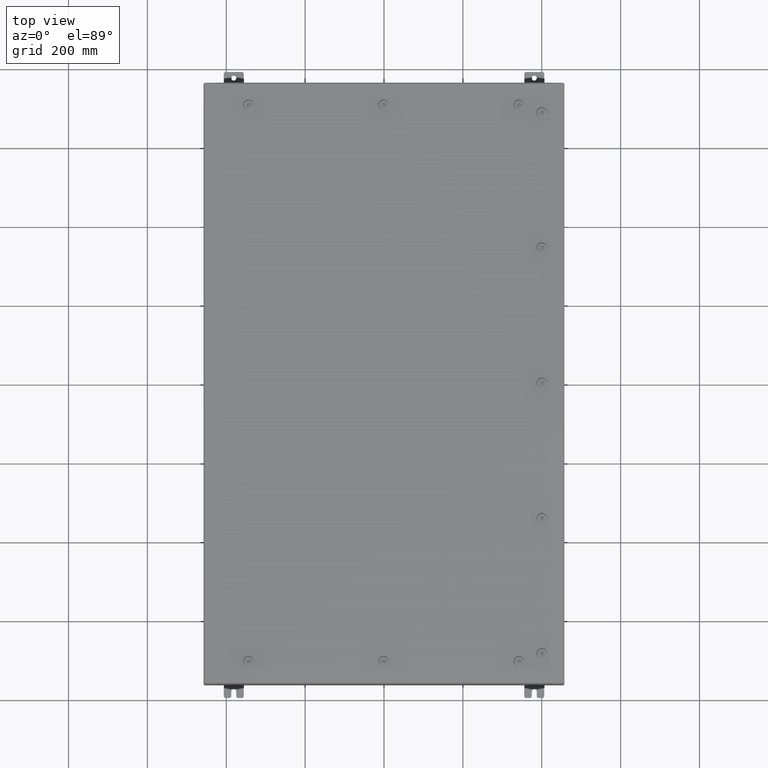
[diagram: clean part render]
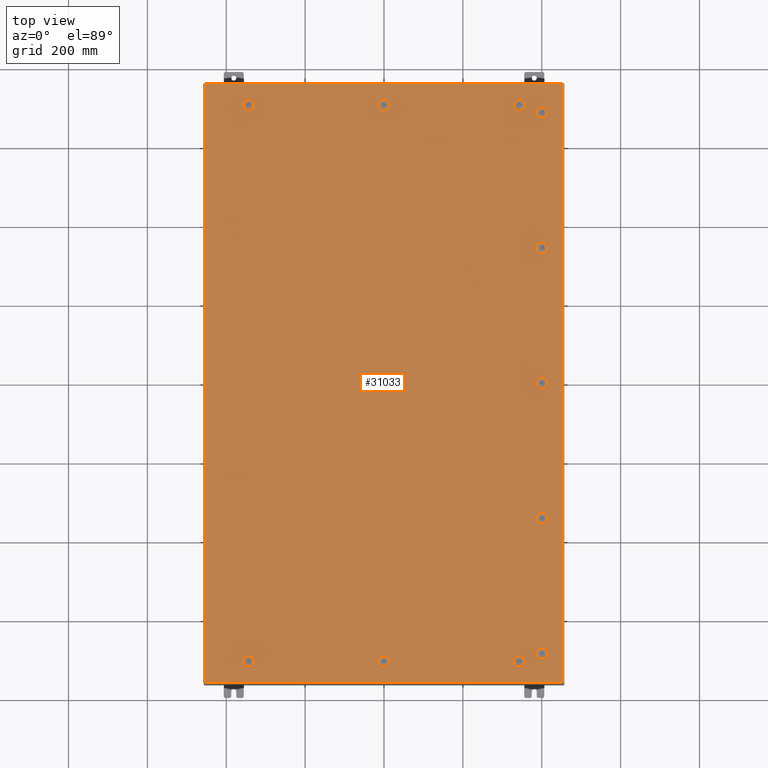
[diagram: same view with one face highlighted and labeled with its STEP entity id]
A machine part, top view. The second image highlights one B-rep face of the part: STEP entity #31033.
In plain terms, the highlighted planar face has unit normal (0, 0, -1).
Its self-contained STEP definition (entity closure, byte-faithful):
#134 = CIRCLE ( 'NONE', #59045, 0.4424999999999983400 ) ;
#562 = EDGE_LOOP ( 'NONE', ( #17964, #68830, #25223, #2264, #16857 ) ) ;
#693 = CARTESIAN_POINT ( 'NONE',  ( 0.1994523752678995500, 27.39280000000000500, 0.0000000000000000000 ) ) ;
#711 = VECTOR ( 'NONE', #7477, 39.37007874015748100 ) ;
#865 = VERTEX_POINT ( 'NONE', #67998 ) ;
#885 = AXIS2_PLACEMENT_3D ( 'NONE', #6546, #43883, #11890 ) ;
#894 = DIRECTION ( 'NONE',  ( 0.0000000000000000000, 1.000000000000000000, 6.982962677686270700E-015 ) ) ;
#1018 = DIRECTION ( 'NONE',  ( -1.000000000000000000, 0.0000000000000000000, -0.0000000000000000000 ) ) ;
#1143 = ORIENTED_EDGE ( 'NONE', *, *, #59953, .F. ) ;
#1193 = CIRCLE ( 'NONE', #4665, 0.4424999999999983400 ) ;
#1323 = VERTEX_POINT ( 'NONE', #39084 ) ;
#1429 = CARTESIAN_POINT ( 'NONE',  ( -13.69945237526786700, -28.18280000000001100, 0.0000000000000000000 ) ) ;
#1664 = CARTESIAN_POINT ( 'NONE',  ( 15.78780000000000600, 1.529834876451990400E-014, 0.0000000000000000000 ) ) ;
#1734 = AXIS2_PLACEMENT_3D ( 'NONE', #10011, #47366, #15346 ) ;
#1767 = VERTEX_POINT ( 'NONE', #56731 ) ;
#1785 = DIRECTION ( 'NONE',  ( 1.000000000000000000, 0.0000000000000000000, 0.0000000000000000000 ) ) ;
#1797 = EDGE_LOOP ( 'NONE', ( #12185, #9055, #69165, #61637, #56162 ) ) ;
#1937 = CARTESIAN_POINT ( 'NONE',  ( 13.49999999999998600, -27.78780000000000800, -1.578617423656501800E-013 ) ) ;
#1939 = CARTESIAN_POINT ( 'NONE',  ( 13.30054762473210400, 27.39280000000000500, -9.287722765629301200E-014 ) ) ;
#1982 = DIRECTION ( 'NONE',  ( -1.000000000000000000, 1.095739467627836100E-014, 0.0000000000000000000 ) ) ;
#2155 = VERTEX_POINT ( 'NONE', #66575 ) ;
#2157 = EDGE_LOOP ( 'NONE', ( #12178, #30775, #1143, #33017, #7989 ) ) ;
#2188 = EDGE_LOOP ( 'NONE', ( #5743, #47363, #36731, #57926 ) ) ;
#2203 = VECTOR ( 'NONE', #8500, 39.37007874015748100 ) ;
#2209 = LINE ( 'NONE', #34945, #16352 ) ;
#2264 = ORIENTED_EDGE ( 'NONE', *, *, #57761, .F. ) ;
#2476 = ORIENTED_EDGE ( 'NONE', *, *, #57157, .F. ) ;
#2613 = EDGE_CURVE ( 'NONE', #67938, #31679, #12963, .T. ) ;
#2895 = AXIS2_PLACEMENT_3D ( 'NONE', #9745, #47095, #15081 ) ;
#3361 = VECTOR ( 'NONE', #48272, 39.37007874015748100 ) ;
#3399 = DIRECTION ( 'NONE',  ( -1.000000000000000000, 0.0000000000000000000, 7.785697190086082800E-029 ) ) ;
#3426 = CARTESIAN_POINT ( 'NONE',  ( 15.39280000000001400, 13.30054762473213400, 0.0000000000000000000 ) ) ;
#3694 = ORIENTED_EDGE ( 'NONE', *, *, #65088, .F. ) ;
#4224 = FACE_BOUND ( 'NONE', #64106, .T. ) ;
#4617 = DIRECTION ( 'NONE',  ( 0.0000000000000000000, 1.000000000000000000, 6.982962677686270700E-015 ) ) ;
#4665 = AXIS2_PLACEMENT_3D ( 'NONE', #42764, #10753, #48095 ) ;
#4886 = VERTEX_POINT ( 'NONE', #11241 ) ;
#5079 = DIRECTION ( 'NONE',  ( 6.982962677686266700E-015, -0.0000000000000000000, 1.000000000000000000 ) ) ;
#5356 = CARTESIAN_POINT ( 'NONE',  ( 16.18280000000000700, 13.30054762473213300, 0.0000000000000000000 ) ) ;
#5375 = DIRECTION ( 'NONE',  ( 0.0000000000000000000, 0.0000000000000000000, 1.000000000000000000 ) ) ;
#5507 = ORIENTED_EDGE ( 'NONE', *, *, #45176, .F. ) ;
#5743 = ORIENTED_EDGE ( 'NONE', *, *, #30547, .F. ) ;
#6106 = DIRECTION ( 'NONE',  ( 1.000000000000000000, -0.0000000000000000000, -0.0000000000000000000 ) ) ;
#6279 = EDGE_LOOP ( 'NONE', ( #39095, #14750, #68523, #36606 ) ) ;
#6379 = VERTEX_POINT ( 'NONE', #56754 ) ;
#6436 = AXIS2_PLACEMENT_3D ( 'NONE', #44473, #12476, #49834 ) ;
#6546 = CARTESIAN_POINT ( 'NONE',  ( 13.49999999999998600, 27.78780000000000100, -9.426999614876453700E-014 ) ) ;
#6608 = EDGE_LOOP ( 'NONE', ( #56340, #59486, #31998, #40694, #40219 ) ) ;
#6903 = DIRECTION ( 'NONE',  ( -1.095739467627838000E-014, -1.000000000000000000, 0.0000000000000000000 ) ) ;
#7022 = EDGE_CURVE ( 'NONE', #56149, #17341, #68126, .T. ) ;
#7069 = DIRECTION ( 'NONE',  ( 1.000000000000000000, 0.0000000000000000000, 0.0000000000000000000 ) ) ;
#7224 = VERTEX_POINT ( 'NONE', #8362 ) ;
#7346 = DIRECTION ( 'NONE',  ( 1.000000000000000000, 0.0000000000000000000, 6.982962677686270700E-015 ) ) ;
#7477 = DIRECTION ( 'NONE',  ( 5.478697338139280000E-015, 1.000000000000000000, 6.982962677686382700E-015 ) ) ;
#7540 = AXIS2_PLACEMENT_3D ( 'NONE', #9359, #46700, #14681 ) ;
#7790 = CARTESIAN_POINT ( 'NONE',  ( 16.18280000000000700, 27.19945237526789600, 0.0000000000000000000 ) ) ;
#7989 = ORIENTED_EDGE ( 'NONE', *, *, #56643, .F. ) ;
#8009 = EDGE_LOOP ( 'NONE', ( #30422, #68835, #34148, #35630 ) ) ;
#8143 = AXIS2_PLACEMENT_3D ( 'NONE', #64943, #32909, #894 ) ;
#8362 = CARTESIAN_POINT ( 'NONE',  ( -17.84979999999999800, -29.84979999999999500, 1.946441695485787500E-015 ) ) ;
#8500 = DIRECTION ( 'NONE',  ( -5.478697338139220100E-015, 1.000000000000000000, -0.0000000000000000000 ) ) ;
#8672 = VERTEX_POINT ( 'NONE', #5356 ) ;
#8783 = VECTOR ( 'NONE', #68954, 39.37007874015748100 ) ;
#8891 = EDGE_CURVE ( 'NONE', #1323, #26157, #13747, .T. ) ;
#8915 = DIRECTION ( 'NONE',  ( 0.0000000000000000000, 0.0000000000000000000, 1.000000000000000000 ) ) ;
#9055 = ORIENTED_EDGE ( 'NONE', *, *, #35049, .F. ) ;
#9061 = CARTESIAN_POINT ( 'NONE',  ( 13.30054762473209500, -28.18280000000000400, -1.620127811158077400E-013 ) ) ;
#9074 = CARTESIAN_POINT ( 'NONE',  ( -13.30054762473210200, 27.39280000000000500, 0.0000000000000000000 ) ) ;
#9248 = VECTOR ( 'NONE', #27090, 39.37007874015748100 ) ;
#9319 = CIRCLE ( 'NONE', #17200, 0.4424999999999972800 ) ;
#9359 = CARTESIAN_POINT ( 'NONE',  ( 1.529834876451987200E-014, 27.78780000000000100, 0.0000000000000000000 ) ) ;
#9630 = EDGE_CURVE ( 'NONE', #15459, #41824, #57974, .T. ) ;
#9745 = CARTESIAN_POINT ( 'NONE',  ( 13.49999999999998600, -27.78780000000000800, -1.578617423656501800E-013 ) ) ;
#9779 = EDGE_CURVE ( 'NONE', #20338, #39623, #11977, .T. ) ;
#9949 = AXIS2_PLACEMENT_3D ( 'NONE', #51728, #19676, #57094 ) ;
#10011 = CARTESIAN_POINT ( 'NONE',  ( 15.78780000000001300, -13.50000000000001800, -9.426999614876466400E-014 ) ) ;
#10057 = LINE ( 'NONE', #47423, #19237 ) ;
#10464 = CARTESIAN_POINT ( 'NONE',  ( -13.69945237526786900, 27.39280000000000500, 0.0000000000000000000 ) ) ;
#10476 = CARTESIAN_POINT ( 'NONE',  ( -13.49999999999998600, -27.78780000000001500, -2.521317385144146900E-013 ) ) ;
#10550 = DIRECTION ( 'NONE',  ( 0.0000000000000000000, 1.000000000000000000, 6.982962677686270700E-015 ) ) ;
#10753 = DIRECTION ( 'NONE',  ( -0.0000000000000000000, -6.982962677686266700E-015, 1.000000000000000000 ) ) ;
#10788 = VERTEX_POINT ( 'NONE', #9061 ) ;
#10934 = CARTESIAN_POINT ( 'NONE',  ( -13.30054762473209400, -28.18280000000000700, -2.548900087721007400E-013 ) ) ;
#11096 = CARTESIAN_POINT ( 'NONE',  ( -13.05749999999998900, 27.78780000000000100, 0.0000000000000000000 ) ) ;
#11241 = CARTESIAN_POINT ( 'NONE',  ( -0.1994523752678689600, -27.39280000000000500, -2.493734682567286400E-013 ) ) ;
#11492 = ORIENTED_EDGE ( 'NONE', *, *, #9630, .F. ) ;
#11683 = CARTESIAN_POINT ( 'NONE',  ( 1.529834876451987200E-014, 27.78780000000000100, 0.0000000000000000000 ) ) ;
#11697 = FACE_BOUND ( 'NONE', #6608, .T. ) ;
#11761 = LINE ( 'NONE', #33119, #25961 ) ;
#11788 = VERTEX_POINT ( 'NONE', #23167 ) ;
#11812 = VECTOR ( 'NONE', #19951, 39.37007874015748100 ) ;
#11818 = EDGE_CURVE ( 'NONE', #24418, #62717, #60333, .T. ) ;
#11890 = DIRECTION ( 'NONE',  ( -1.000000000000000000, 0.0000000000000000000, 6.982962677686235200E-015 ) ) ;
#11977 = LINE ( 'NONE', #56094, #24529 ) ;
#12178 = ORIENTED_EDGE ( 'NONE', *, *, #45532, .F. ) ;
#12185 = ORIENTED_EDGE ( 'NONE', *, *, #42447, .F. ) ;
#12221 = ORIENTED_EDGE ( 'NONE', *, *, #50963, .F. ) ;
#12259 = DIRECTION ( 'NONE',  ( 0.0000000000000000000, 0.0000000000000000000, 1.000000000000000000 ) ) ;
#12343 = CARTESIAN_POINT ( 'NONE',  ( 17.84979999999999800, 29.84980000000001300, 1.946441695485787500E-015 ) ) ;
#12476 = DIRECTION ( 'NONE',  ( -6.982962677686266700E-015, -6.982962677686266700E-015, 1.000000000000000000 ) ) ;
#12723 = AXIS2_PLACEMENT_3D ( 'NONE', #44266, #12259, #49617 ) ;
#12946 = CARTESIAN_POINT ( 'NONE',  ( 13.69945237526786900, 28.18280000000000000, 0.0000000000000000000 ) ) ;
#12963 = CIRCLE ( 'NONE', #57110, 0.4424999999999983400 ) ;
#13062 = CARTESIAN_POINT ( 'NONE',  ( -13.05749999999998900, -27.78780000000001500, -2.521317385144146900E-013 ) ) ;
#13090 = VERTEX_POINT ( 'NONE', #37916 ) ;
#13178 = CARTESIAN_POINT ( 'NONE',  ( 0.1994523752678995500, 27.39280000000000500, 0.0000000000000000000 ) ) ;
#13312 = ORIENTED_EDGE ( 'NONE', *, *, #34636, .F. ) ;
#13323 = LINE ( 'NONE', #64980, #68517 ) ;
#13328 = VERTEX_POINT ( 'NONE', #1939 ) ;
#13340 = AXIS2_PLACEMENT_3D ( 'NONE', #64835, #33037, #1018 ) ;
#13390 = FACE_BOUND ( 'NONE', #6279, .T. ) ;
#13747 = LINE ( 'NONE', #60150, #54664 ) ;
#13752 = DIRECTION ( 'NONE',  ( -1.000000000000000000, -0.0000000000000000000, -6.982962677686265900E-015 ) ) ;
#13771 = EDGE_CURVE ( 'NONE', #44496, #7224, #10057, .T. ) ;
#13930 = VERTEX_POINT ( 'NONE', #43668 ) ;
#14180 = ORIENTED_EDGE ( 'NONE', *, *, #11818, .F. ) ;
#14533 = CARTESIAN_POINT ( 'NONE',  ( 15.39280000000001400, 0.1994523752679062100, 0.0000000000000000000 ) ) ;
#14568 = CIRCLE ( 'NONE', #64040, 0.4424999999999961700 ) ;
#14596 = CARTESIAN_POINT ( 'NONE',  ( 15.39280000000002200, -27.19945237526790300, -1.899327607900008200E-013 ) ) ;
#14681 = DIRECTION ( 'NONE',  ( 1.000000000000000000, 0.0000000000000000000, 0.0000000000000000000 ) ) ;
#14750 = ORIENTED_EDGE ( 'NONE', *, *, #69319, .F. ) ;
#14975 = EDGE_CURVE ( 'NONE', #58235, #44496, #51773, .T. ) ;
#15081 = DIRECTION ( 'NONE',  ( 1.000000000000000000, 0.0000000000000000000, 6.982962677686304600E-015 ) ) ;
#15206 = EDGE_CURVE ( 'NONE', #17638, #32109, #55926, .T. ) ;
#15346 = DIRECTION ( 'NONE',  ( 0.0000000000000000000, 1.000000000000000000, 6.982962677686269100E-015 ) ) ;
#15392 = LINE ( 'NONE', #59102, #54676 ) ;
#15459 = VERTEX_POINT ( 'NONE', #67732 ) ;
#15658 = CARTESIAN_POINT ( 'NONE',  ( 15.39280000000001900, 27.19945237526790300, 0.0000000000000000000 ) ) ;
#15818 = LINE ( 'NONE', #10934, #3361 ) ;
#15830 = DIRECTION ( 'NONE',  ( 0.0000000000000000000, 1.000000000000000000, 6.982962677686270700E-015 ) ) ;
#15894 = AXIS2_PLACEMENT_3D ( 'NONE', #49107, #17078, #54479 ) ;
#16340 = CARTESIAN_POINT ( 'NONE',  ( 17.84979999999999800, -29.84979999999998800, -2.048885995248197400E-016 ) ) ;
#16347 = LINE ( 'NONE', #61755, #2203 ) ;
#16352 = VECTOR ( 'NONE', #55696, 39.37007874015748100 ) ;
#16458 = CARTESIAN_POINT ( 'NONE',  ( -17.84979999999999800, -29.84979999999999500, 1.946441695485787500E-015 ) ) ;
#16624 = CARTESIAN_POINT ( 'NONE',  ( 15.39280000000001000, -0.1994523752678671000, 0.0000000000000000000 ) ) ;
#16686 = CIRCLE ( 'NONE', #16805, 0.4424999999999983400 ) ;
#16757 = LINE ( 'NONE', #23897, #43536 ) ;
#16805 = AXIS2_PLACEMENT_3D ( 'NONE', #26302, #63756, #31700 ) ;
#16857 = ORIENTED_EDGE ( 'NONE', *, *, #36088, .F. ) ;
#17005 = DIRECTION ( 'NONE',  ( 1.000000000000000000, 0.0000000000000000000, 0.0000000000000000000 ) ) ;
#17078 = DIRECTION ( 'NONE',  ( -0.0000000000000000000, -6.982962677686266700E-015, 1.000000000000000000 ) ) ;
#17200 = AXIS2_PLACEMENT_3D ( 'NONE', #40944, #8915, #46247 ) ;
#17341 = VERTEX_POINT ( 'NONE', #27842 ) ;
#17531 = VERTEX_POINT ( 'NONE', #28779 ) ;
#17638 = VERTEX_POINT ( 'NONE', #45382 ) ;
#17838 = AXIS2_PLACEMENT_3D ( 'NONE', #1937, #39334, #7346 ) ;
#17964 = ORIENTED_EDGE ( 'NONE', *, *, #51828, .F. ) ;
#18302 = EDGE_CURVE ( 'NONE', #40142, #32150, #37810, .T. ) ;
#18900 = ORIENTED_EDGE ( 'NONE', *, *, #22668, .F. ) ;
#19237 = VECTOR ( 'NONE', #37599, 39.37007874015748100 ) ;
#19269 = EDGE_CURVE ( 'NONE', #39623, #67938, #134, .T. ) ;
#19676 = DIRECTION ( 'NONE',  ( 6.982962677686266700E-015, -0.0000000000000000000, 1.000000000000000000 ) ) ;
#19913 = EDGE_CURVE ( 'NONE', #1767, #34965, #65322, .T. ) ;
#19951 = DIRECTION ( 'NONE',  ( 1.095739467627844000E-014, -1.000000000000000000, -6.982962677686306200E-015 ) ) ;
#20338 = VERTEX_POINT ( 'NONE', #44683 ) ;
#20537 = AXIS2_PLACEMENT_3D ( 'NONE', #65810, #33804, #1785 ) ;
#20735 = VERTEX_POINT ( 'NONE', #15658 ) ;
#21078 = ORIENTED_EDGE ( 'NONE', *, *, #64093, .F. ) ;
#21107 = CARTESIAN_POINT ( 'NONE',  ( 13.69945237526787100, -27.39280000000001500, 0.0000000000000000000 ) ) ;
#21649 = VERTEX_POINT ( 'NONE', #13062 ) ;
#21689 = LINE ( 'NONE', #7790, #32588 ) ;
#21759 = LINE ( 'NONE', #64198, #62831 ) ;
#22423 = CIRCLE ( 'NONE', #9949, 0.4424999999999961700 ) ;
#22563 = LINE ( 'NONE', #67637, #63629 ) ;
#22668 = EDGE_CURVE ( 'NONE', #62717, #13328, #22423, .T. ) ;
#23065 = LINE ( 'NONE', #39384, #62439 ) ;
#23167 = CARTESIAN_POINT ( 'NONE',  ( 15.39280000000002100, -13.69945237526790600, -9.566276464123621500E-014 ) ) ;
#23399 = ORIENTED_EDGE ( 'NONE', *, *, #38777, .F. ) ;
#23445 = VECTOR ( 'NONE', #6106, 39.37007874015748100 ) ;
#23873 = EDGE_CURVE ( 'NONE', #34965, #17638, #33289, .T. ) ;
#23897 = CARTESIAN_POINT ( 'NONE',  ( 0.1994523752678995500, -27.39280000000000500, -2.493734682567286900E-013 ) ) ;
#24242 = FACE_OUTER_BOUND ( 'NONE', #8009, .T. ) ;
#24418 = VERTEX_POINT ( 'NONE', #12946 ) ;
#24457 = CARTESIAN_POINT ( 'NONE',  ( 15.78780000000001000, 27.00000000000001400, 0.0000000000000000000 ) ) ;
#24529 = VECTOR ( 'NONE', #28978, 39.37007874015748100 ) ;
#24648 = DIRECTION ( 'NONE',  ( 0.0000000000000000000, 0.0000000000000000000, 1.000000000000000000 ) ) ;
#24774 = DIRECTION ( 'NONE',  ( -0.0000000000000000000, -6.982962677686266700E-015, 1.000000000000000000 ) ) ;
#25070 = EDGE_CURVE ( 'NONE', #51771, #62169, #51800, .T. ) ;
#25087 = LINE ( 'NONE', #16340, #9248 ) ;
#25223 = ORIENTED_EDGE ( 'NONE', *, *, #50672, .F. ) ;
#25560 = CIRCLE ( 'NONE', #7540, 0.4424999999999972800 ) ;
#25734 = CARTESIAN_POINT ( 'NONE',  ( 15.78780000000001000, 13.50000000000001800, 0.0000000000000000000 ) ) ;
#25754 = EDGE_CURVE ( 'NONE', #2155, #24418, #31663, .T. ) ;
#25888 = FACE_BOUND ( 'NONE', #562, .T. ) ;
#25903 = EDGE_CURVE ( 'NONE', #7224, #865, #47539, .T. ) ;
#25961 = VECTOR ( 'NONE', #65149, 39.37007874015748100 ) ;
#26157 = VERTEX_POINT ( 'NONE', #3426 ) ;
#26302 = CARTESIAN_POINT ( 'NONE',  ( 15.78780000000000600, 1.529834876451990400E-014, 0.0000000000000000000 ) ) ;
#26397 = CARTESIAN_POINT ( 'NONE',  ( -13.30054762473210200, -27.39280000000001900, -2.493734682567286900E-013 ) ) ;
#26435 = CARTESIAN_POINT ( 'NONE',  ( 0.1994523752679054600, -28.18279999999999300, -2.548900087721007400E-013 ) ) ;
#26838 = DIRECTION ( 'NONE',  ( 1.000000000000000000, 0.0000000000000000000, -6.982962677686306200E-015 ) ) ;
#27090 = DIRECTION ( 'NONE',  ( 0.0000000000000000000, 1.000000000000000000, 0.0000000000000000000 ) ) ;
#27778 = CARTESIAN_POINT ( 'NONE',  ( 13.30054762473210400, -27.39280000000001500, -1.564962406004356200E-013 ) ) ;
#27842 = CARTESIAN_POINT ( 'NONE',  ( -13.30054762473209400, 28.18279999999999300, 0.0000000000000000000 ) ) ;
#28133 = VERTEX_POINT ( 'NONE', #54115 ) ;
#28256 = CIRCLE ( 'NONE', #885, 0.4424999999999983400 ) ;
#28622 = DIRECTION ( 'NONE',  ( -0.0000000000000000000, -6.982962677686266700E-015, 1.000000000000000000 ) ) ;
#28662 = ORIENTED_EDGE ( 'NONE', *, *, #33311, .F. ) ;
#28672 = EDGE_CURVE ( 'NONE', #41252, #54713, #55820, .T. ) ;
#28779 = CARTESIAN_POINT ( 'NONE',  ( -0.1994523752678657400, 28.18280000000000000, 0.0000000000000000000 ) ) ;
#28978 = DIRECTION ( 'NONE',  ( 1.000000000000000000, 1.095739467627836100E-014, 7.785697190085984100E-029 ) ) ;
#29228 = EDGE_LOOP ( 'NONE', ( #30793, #13312, #3694, #60482, #23399 ) ) ;
#29832 = DIRECTION ( 'NONE',  ( 1.000000000000000000, 0.0000000000000000000, 0.0000000000000000000 ) ) ;
#29879 = CIRCLE ( 'NONE', #17838, 0.4424999999999983400 ) ;
#29958 = CIRCLE ( 'NONE', #34966, 0.4424999999999961700 ) ;
#30004 = VECTOR ( 'NONE', #59483, 39.37007874015748100 ) ;
#30017 = AXIS2_PLACEMENT_3D ( 'NONE', #11683, #49025, #17005 ) ;
#30420 = DIRECTION ( 'NONE',  ( 0.0000000000000000000, 0.0000000000000000000, 1.000000000000000000 ) ) ;
#30421 = CARTESIAN_POINT ( 'NONE',  ( 15.78780000000001300, -13.50000000000001800, -9.426999614876466400E-014 ) ) ;
#30422 = ORIENTED_EDGE ( 'NONE', *, *, #25903, .T. ) ;
#30436 = CARTESIAN_POINT ( 'NONE',  ( 17.84979999999999800, 29.84980000000001300, 1.946441695485787500E-015 ) ) ;
#30547 = EDGE_CURVE ( 'NONE', #8672, #54984, #16347, .T. ) ;
#30727 = EDGE_CURVE ( 'NONE', #57107, #41594, #25560, .T. ) ;
#30775 = ORIENTED_EDGE ( 'NONE', *, *, #67430, .F. ) ;
#30793 = ORIENTED_EDGE ( 'NONE', *, *, #25070, .F. ) ;
#31033 = ADVANCED_FACE ( 'NONE', ( #68574, #13390, #4224, #54289, #40174, #41820, #25888, #11697, #66907, #52656, #38444, #24242 ), #65062, .F. ) ;
#31133 = DIRECTION ( 'NONE',  ( 1.000000000000000000, 0.0000000000000000000, 0.0000000000000000000 ) ) ;
#31246 = EDGE_CURVE ( 'NONE', #31679, #4886, #16757, .T. ) ;
#31265 = LINE ( 'NONE', #45748, #32936 ) ;
#31303 = AXIS2_PLACEMENT_3D ( 'NONE', #37348, #5375, #42743 ) ;
#31539 = EDGE_LOOP ( 'NONE', ( #12221, #21078, #47432, #11492 ) ) ;
#31663 = CIRCLE ( 'NONE', #32837, 0.4424999999999983400 ) ;
#31679 = VERTEX_POINT ( 'NONE', #62985 ) ;
#31700 = DIRECTION ( 'NONE',  ( 1.000000000000000000, 0.0000000000000000000, 0.0000000000000000000 ) ) ;
#31998 = ORIENTED_EDGE ( 'NONE', *, *, #31246, .F. ) ;
#32109 = VERTEX_POINT ( 'NONE', #54443 ) ;
#32150 = VERTEX_POINT ( 'NONE', #1429 ) ;
#32304 = CARTESIAN_POINT ( 'NONE',  ( 16.18280000000000700, -13.69945237526790100, -9.566276464123617700E-014 ) ) ;
#32421 = VERTEX_POINT ( 'NONE', #67106 ) ;
#32588 = VECTOR ( 'NONE', #50491, 39.37007874015748100 ) ;
#32837 = AXIS2_PLACEMENT_3D ( 'NONE', #37055, #5079, #42445 ) ;
#32909 = DIRECTION ( 'NONE',  ( -0.0000000000000000000, -6.982962677686266700E-015, 1.000000000000000000 ) ) ;
#32925 = CARTESIAN_POINT ( 'NONE',  ( 0.4425000000000125500, -27.78780000000000100, -2.521317385144146900E-013 ) ) ;
#32936 = VECTOR ( 'NONE', #13752, 39.37007874015748100 ) ;
#33017 = ORIENTED_EDGE ( 'NONE', *, *, #48874, .F. ) ;
#33037 = DIRECTION ( 'NONE',  ( 0.0000000000000000000, 0.0000000000000000000, -1.000000000000000000 ) ) ;
#33119 = CARTESIAN_POINT ( 'NONE',  ( 15.39280000000002100, -13.69945237526790600, -9.566276464123621500E-014 ) ) ;
#33289 = CIRCLE ( 'NONE', #68189, 0.4424999999999983400 ) ;
#33311 = EDGE_CURVE ( 'NONE', #28133, #13930, #66857, .T. ) ;
#33804 = DIRECTION ( 'NONE',  ( 0.0000000000000000000, 0.0000000000000000000, 1.000000000000000000 ) ) ;
#34145 = DIRECTION ( 'NONE',  ( -0.0000000000000000000, -6.982962677686266700E-015, 1.000000000000000000 ) ) ;
#34148 = ORIENTED_EDGE ( 'NONE', *, *, #14975, .T. ) ;
#34636 = EDGE_CURVE ( 'NONE', #49105, #51771, #29958, .T. ) ;
#34945 = CARTESIAN_POINT ( 'NONE',  ( 15.39280000000001900, 27.19945237526790300, 0.0000000000000000000 ) ) ;
#34965 = VERTEX_POINT ( 'NONE', #43216 ) ;
#34966 = AXIS2_PLACEMENT_3D ( 'NONE', #62475, #30420, #67837 ) ;
#35049 = EDGE_CURVE ( 'NONE', #17531, #43769, #65896, .T. ) ;
#35615 = CARTESIAN_POINT ( 'NONE',  ( 16.18280000000000700, 27.19945237526789600, 0.0000000000000000000 ) ) ;
#35630 = ORIENTED_EDGE ( 'NONE', *, *, #13771, .T. ) ;
#35819 = DIRECTION ( 'NONE',  ( 0.0000000000000000000, 1.000000000000000000, 6.982962677686270700E-015 ) ) ;
#36088 = EDGE_CURVE ( 'NONE', #39023, #21649, #41572, .T. ) ;
#36359 = DIRECTION ( 'NONE',  ( 5.478697338139220100E-015, 1.000000000000000000, 6.982962677686228100E-015 ) ) ;
#36602 = DIRECTION ( 'NONE',  ( -0.0000000000000000000, -6.982962677686266700E-015, 1.000000000000000000 ) ) ;
#36606 = ORIENTED_EDGE ( 'NONE', *, *, #65556, .F. ) ;
#36710 = VERTEX_POINT ( 'NONE', #21107 ) ;
#36731 = ORIENTED_EDGE ( 'NONE', *, *, #8891, .F. ) ;
#37055 = CARTESIAN_POINT ( 'NONE',  ( 13.49999999999998600, 27.78780000000000100, -9.426999614876453700E-014 ) ) ;
#37149 = LINE ( 'NONE', #63622, #8783 ) ;
#37227 = CIRCLE ( 'NONE', #63370, 0.4424999999999983400 ) ;
#37348 = CARTESIAN_POINT ( 'NONE',  ( 15.78780000000001000, 13.50000000000001800, 0.0000000000000000000 ) ) ;
#37521 = VECTOR ( 'NONE', #60489, 39.37007874015748100 ) ;
#37599 = DIRECTION ( 'NONE',  ( 0.0000000000000000000, -1.000000000000000000, 0.0000000000000000000 ) ) ;
#37656 = LINE ( 'NONE', #693, #23445 ) ;
#37810 = CIRCLE ( 'NONE', #48696, 0.4424999999999983400 ) ;
#37916 = CARTESIAN_POINT ( 'NONE',  ( 15.39280000000001500, -13.30054762473213400, 0.0000000000000000000 ) ) ;
#37943 = EDGE_CURVE ( 'NONE', #32109, #1767, #1193, .T. ) ;
#38006 = EDGE_CURVE ( 'NONE', #13328, #6379, #15392, .T. ) ;
#38444 = FACE_BOUND ( 'NONE', #1797, .T. ) ;
#38777 = EDGE_CURVE ( 'NONE', #62169, #56149, #64710, .T. ) ;
#39023 = VERTEX_POINT ( 'NONE', #62299 ) ;
#39050 = DIRECTION ( 'NONE',  ( 0.0000000000000000000, 0.0000000000000000000, 1.000000000000000000 ) ) ;
#39084 = CARTESIAN_POINT ( 'NONE',  ( 15.39280000000001900, 13.69945237526790600, 0.0000000000000000000 ) ) ;
#39095 = ORIENTED_EDGE ( 'NONE', *, *, #63434, .F. ) ;
#39334 = DIRECTION ( 'NONE',  ( -6.982962677686266700E-015, -6.982962677686266700E-015, 1.000000000000000000 ) ) ;
#39384 = CARTESIAN_POINT ( 'NONE',  ( 0.1994523752679067700, 28.18279999999999300, 0.0000000000000000000 ) ) ;
#39593 = CIRCLE ( 'NONE', #15894, 0.4424999999999983400 ) ;
#39623 = VERTEX_POINT ( 'NONE', #26435 ) ;
#39688 = EDGE_CURVE ( 'NONE', #4886, #20338, #39593, .T. ) ;
#39916 = CIRCLE ( 'NONE', #64987, 0.4424999999999983400 ) ;
#40142 = VERTEX_POINT ( 'NONE', #51913 ) ;
#40174 = FACE_BOUND ( 'NONE', #31539, .T. ) ;
#40219 = ORIENTED_EDGE ( 'NONE', *, *, #19269, .F. ) ;
#40694 = ORIENTED_EDGE ( 'NONE', *, *, #2613, .F. ) ;
#40944 = CARTESIAN_POINT ( 'NONE',  ( 1.529834876451987200E-014, 27.78780000000000100, 0.0000000000000000000 ) ) ;
#41252 = VERTEX_POINT ( 'NONE', #32304 ) ;
#41572 = CIRCLE ( 'NONE', #8143, 0.4424999999999983400 ) ;
#41594 = VERTEX_POINT ( 'NONE', #61063 ) ;
#41820 = FACE_BOUND ( 'NONE', #2157, .T. ) ;
#41824 = VERTEX_POINT ( 'NONE', #14533 ) ;
#42445 = DIRECTION ( 'NONE',  ( -1.000000000000000000, 0.0000000000000000000, 6.982962677686235200E-015 ) ) ;
#42447 = EDGE_CURVE ( 'NONE', #43769, #57107, #37656, .T. ) ;
#42494 = VERTEX_POINT ( 'NONE', #27778 ) ;
#42743 = DIRECTION ( 'NONE',  ( 1.000000000000000000, 0.0000000000000000000, 0.0000000000000000000 ) ) ;
#42764 = CARTESIAN_POINT ( 'NONE',  ( 15.78780000000001500, -27.00000000000001400, -1.885399922975292500E-013 ) ) ;
#43216 = CARTESIAN_POINT ( 'NONE',  ( 15.39280000000002200, -27.19945237526790300, -1.899327607900007900E-013 ) ) ;
#43536 = VECTOR ( 'NONE', #61323, 39.37007874015748100 ) ;
#43668 = CARTESIAN_POINT ( 'NONE',  ( 16.18280000000000700, 26.80054762473213300, 0.0000000000000000000 ) ) ;
#43769 = VERTEX_POINT ( 'NONE', #51453 ) ;
#43883 = DIRECTION ( 'NONE',  ( 6.982962677686266700E-015, -0.0000000000000000000, 1.000000000000000000 ) ) ;
#44127 = CIRCLE ( 'NONE', #31303, 0.4424999999999961700 ) ;
#44266 = CARTESIAN_POINT ( 'NONE',  ( -13.49999999999998600, 27.78780000000000100, 0.0000000000000000000 ) ) ;
#44473 = CARTESIAN_POINT ( 'NONE',  ( 13.49999999999998600, -27.78780000000000800, -1.578617423656501800E-013 ) ) ;
#44496 = VERTEX_POINT ( 'NONE', #65829 ) ;
#44683 = CARTESIAN_POINT ( 'NONE',  ( -0.1994523752678657400, -28.18280000000000400, 0.0000000000000000000 ) ) ;
#44723 = VERTEX_POINT ( 'NONE', #62333 ) ;
#44903 = DIRECTION ( 'NONE',  ( -1.000000000000000000, -1.095739467627832000E-014, 6.982962677686228800E-015 ) ) ;
#44905 = EDGE_CURVE ( 'NONE', #41824, #59976, #37149, .T. ) ;
#45176 = EDGE_CURVE ( 'NONE', #50690, #20735, #14568, .T. ) ;
#45328 = CARTESIAN_POINT ( 'NONE',  ( 13.30054762473209500, 28.18279999999999300, -9.287722765629298600E-014 ) ) ;
#45382 = CARTESIAN_POINT ( 'NONE',  ( 16.18280000000001100, -27.19945237526789600, -1.899327607900007900E-013 ) ) ;
#45532 = EDGE_CURVE ( 'NONE', #36710, #42494, #31265, .T. ) ;
#45748 = CARTESIAN_POINT ( 'NONE',  ( 13.30054762473210400, -27.39280000000001500, -1.564962406004356200E-013 ) ) ;
#46070 = AXIS2_PLACEMENT_3D ( 'NONE', #24457, #61887, #29832 ) ;
#46115 = VECTOR ( 'NONE', #44903, 39.37007874015748100 ) ;
#46247 = DIRECTION ( 'NONE',  ( 1.000000000000000000, 0.0000000000000000000, 0.0000000000000000000 ) ) ;
#46700 = DIRECTION ( 'NONE',  ( 0.0000000000000000000, 0.0000000000000000000, 1.000000000000000000 ) ) ;
#47095 = DIRECTION ( 'NONE',  ( -6.982962677686266700E-015, -6.982962677686266700E-015, 1.000000000000000000 ) ) ;
#47363 = ORIENTED_EDGE ( 'NONE', *, *, #50808, .F. ) ;
#47366 = DIRECTION ( 'NONE',  ( -0.0000000000000000000, -6.982962677686266700E-015, 1.000000000000000000 ) ) ;
#47423 = CARTESIAN_POINT ( 'NONE',  ( -17.84979999999998100, 29.84980000000000500, 4.166068190338001500E-015 ) ) ;
#47432 = ORIENTED_EDGE ( 'NONE', *, *, #44905, .F. ) ;
#47457 = CARTESIAN_POINT ( 'NONE',  ( 13.94249999999998500, -27.78780000000000800, -1.547717813807740000E-013 ) ) ;
#47464 = AXIS2_PLACEMENT_3D ( 'NONE', #1664, #39050, #7069 ) ;
#47539 = LINE ( 'NONE', #16458, #30004 ) ;
#47669 = CIRCLE ( 'NONE', #49178, 0.4424999999999983400 ) ;
#47828 = DIRECTION ( 'NONE',  ( -0.0000000000000000000, -6.982962677686266700E-015, 1.000000000000000000 ) ) ;
#47901 = DIRECTION ( 'NONE',  ( -5.478697338139235000E-015, 1.000000000000000000, -0.0000000000000000000 ) ) ;
#48095 = DIRECTION ( 'NONE',  ( 0.0000000000000000000, 1.000000000000000000, 6.982962677686270700E-015 ) ) ;
#48272 = DIRECTION ( 'NONE',  ( 1.000000000000000000, 1.095739467627832000E-014, 7.785697190085955000E-029 ) ) ;
#48337 = CARTESIAN_POINT ( 'NONE',  ( -13.30054762473210200, 27.39280000000000500, 0.0000000000000000000 ) ) ;
#48671 = EDGE_LOOP ( 'NONE', ( #14180, #51459, #65640, #54503, #18900 ) ) ;
#48696 = AXIS2_PLACEMENT_3D ( 'NONE', #60647, #28622, #66042 ) ;
#48874 = EDGE_CURVE ( 'NONE', #10788, #44723, #21759, .T. ) ;
#49025 = DIRECTION ( 'NONE',  ( 0.0000000000000000000, 0.0000000000000000000, 1.000000000000000000 ) ) ;
#49105 = VERTEX_POINT ( 'NONE', #61369 ) ;
#49107 = CARTESIAN_POINT ( 'NONE',  ( 1.529834876451987200E-014, -27.78780000000000100, -2.521317385144146900E-013 ) ) ;
#49178 = AXIS2_PLACEMENT_3D ( 'NONE', #25734, #63195, #31133 ) ;
#49617 = DIRECTION ( 'NONE',  ( 1.000000000000000000, 0.0000000000000000000, 0.0000000000000000000 ) ) ;
#49834 = DIRECTION ( 'NONE',  ( 1.000000000000000000, 0.0000000000000000000, 6.982962677686270700E-015 ) ) ;
#49962 = EDGE_CURVE ( 'NONE', #13930, #50690, #21689, .T. ) ;
#50173 = CARTESIAN_POINT ( 'NONE',  ( 16.18280000000001100, -27.19945237526789600, -1.899327607900007900E-013 ) ) ;
#50491 = DIRECTION ( 'NONE',  ( -5.478697338139280000E-015, 1.000000000000000000, -0.0000000000000000000 ) ) ;
#50672 = EDGE_CURVE ( 'NONE', #61776, #40142, #22563, .T. ) ;
#50690 = VERTEX_POINT ( 'NONE', #35615 ) ;
#50808 = EDGE_CURVE ( 'NONE', #26157, #8672, #47669, .T. ) ;
#50878 = VERTEX_POINT ( 'NONE', #47457 ) ;
#50963 = EDGE_CURVE ( 'NONE', #32421, #15459, #67780, .T. ) ;
#51101 = EDGE_CURVE ( 'NONE', #865, #58235, #25087, .T. ) ;
#51453 = CARTESIAN_POINT ( 'NONE',  ( -0.1994523752678689600, 27.39280000000000500, 0.0000000000000000000 ) ) ;
#51459 = ORIENTED_EDGE ( 'NONE', *, *, #25754, .F. ) ;
#51728 = CARTESIAN_POINT ( 'NONE',  ( 13.49999999999998600, 27.78780000000000100, -9.426999614876453700E-014 ) ) ;
#51771 = VERTEX_POINT ( 'NONE', #10464 ) ;
#51773 = LINE ( 'NONE', #12343, #37521 ) ;
#51800 = LINE ( 'NONE', #48337, #53421 ) ;
#51828 = EDGE_CURVE ( 'NONE', #32150, #39023, #15818, .T. ) ;
#51913 = CARTESIAN_POINT ( 'NONE',  ( -13.69945237526786900, -27.39280000000001900, -2.493734682567286400E-013 ) ) ;
#52120 = ORIENTED_EDGE ( 'NONE', *, *, #49962, .F. ) ;
#52147 = CIRCLE ( 'NONE', #6436, 0.4424999999999983400 ) ;
#52656 = FACE_BOUND ( 'NONE', #29228, .T. ) ;
#52843 = CARTESIAN_POINT ( 'NONE',  ( 1.529834876451987200E-014, -27.78780000000000100, -2.521317385144146900E-013 ) ) ;
#53290 = CARTESIAN_POINT ( 'NONE',  ( 0.1994523752679054600, 28.18279999999999300, 0.0000000000000000000 ) ) ;
#53421 = VECTOR ( 'NONE', #53473, 39.37007874015748100 ) ;
#53473 = DIRECTION ( 'NONE',  ( 1.000000000000000000, -0.0000000000000000000, -0.0000000000000000000 ) ) ;
#53490 = VECTOR ( 'NONE', #47901, 39.37007874015748100 ) ;
#54115 = CARTESIAN_POINT ( 'NONE',  ( 15.39280000000001400, 26.80054762473213300, 0.0000000000000000000 ) ) ;
#54289 = FACE_BOUND ( 'NONE', #2188, .T. ) ;
#54408 = DIRECTION ( 'NONE',  ( -1.000000000000000000, 1.095739467627832000E-014, 0.0000000000000000000 ) ) ;
#54427 = ORIENTED_EDGE ( 'NONE', *, *, #37943, .F. ) ;
#54443 = CARTESIAN_POINT ( 'NONE',  ( 16.18280000000001500, -26.80054762473213300, -1.871472238050577400E-013 ) ) ;
#54479 = DIRECTION ( 'NONE',  ( 0.0000000000000000000, 1.000000000000000000, 6.982962677686270700E-015 ) ) ;
#54503 = ORIENTED_EDGE ( 'NONE', *, *, #38006, .F. ) ;
#54664 = VECTOR ( 'NONE', #6903, 39.37007874015748100 ) ;
#54676 = VECTOR ( 'NONE', #26838, 39.37007874015748100 ) ;
#54713 = VERTEX_POINT ( 'NONE', #66066 ) ;
#54984 = VERTEX_POINT ( 'NONE', #57363 ) ;
#55601 = VERTEX_POINT ( 'NONE', #53290 ) ;
#55696 = DIRECTION ( 'NONE',  ( -1.095739467627844000E-014, -1.000000000000000000, 0.0000000000000000000 ) ) ;
#55820 = LINE ( 'NONE', #57369, #68384 ) ;
#55926 = LINE ( 'NONE', #50173, #711 ) ;
#56094 = CARTESIAN_POINT ( 'NONE',  ( 0.1994523752679067700, -28.18279999999999300, -2.548900087721007400E-013 ) ) ;
#56149 = VERTEX_POINT ( 'NONE', #11096 ) ;
#56162 = ORIENTED_EDGE ( 'NONE', *, *, #30727, .F. ) ;
#56340 = ORIENTED_EDGE ( 'NONE', *, *, #9779, .F. ) ;
#56643 = EDGE_CURVE ( 'NONE', #42494, #10788, #61629, .T. ) ;
#56671 = CARTESIAN_POINT ( 'NONE',  ( 15.78780000000001000, 27.00000000000001400, 0.0000000000000000000 ) ) ;
#56731 = CARTESIAN_POINT ( 'NONE',  ( 15.39280000000001900, -26.80054762473213300, 0.0000000000000000000 ) ) ;
#56754 = CARTESIAN_POINT ( 'NONE',  ( 13.69945237526787100, 27.39280000000000500, -9.566276464123603800E-014 ) ) ;
#56813 = CARTESIAN_POINT ( 'NONE',  ( 1.529834876451987200E-014, -27.78780000000000100, -2.521317385144146900E-013 ) ) ;
#57054 = EDGE_CURVE ( 'NONE', #55601, #17531, #23065, .T. ) ;
#57094 = DIRECTION ( 'NONE',  ( -1.000000000000000000, 0.0000000000000000000, 6.982962677686269100E-015 ) ) ;
#57107 = VERTEX_POINT ( 'NONE', #13178 ) ;
#57110 = AXIS2_PLACEMENT_3D ( 'NONE', #52843, #34145, #10550 ) ;
#57157 = EDGE_CURVE ( 'NONE', #20735, #28133, #2209, .T. ) ;
#57363 = CARTESIAN_POINT ( 'NONE',  ( 16.18280000000000700, 13.69945237526790100, 0.0000000000000000000 ) ) ;
#57369 = CARTESIAN_POINT ( 'NONE',  ( 16.18280000000000700, -13.69945237526790100, -9.566276464123617700E-014 ) ) ;
#57761 = EDGE_CURVE ( 'NONE', #21649, #61776, #37227, .T. ) ;
#57926 = ORIENTED_EDGE ( 'NONE', *, *, #66559, .F. ) ;
#57974 = CIRCLE ( 'NONE', #47464, 0.4424999999999983400 ) ;
#58235 = VERTEX_POINT ( 'NONE', #30436 ) ;
#58417 = CIRCLE ( 'NONE', #1734, 0.4424999999999961700 ) ;
#59045 = AXIS2_PLACEMENT_3D ( 'NONE', #56813, #24774, #62229 ) ;
#59102 = CARTESIAN_POINT ( 'NONE',  ( 13.30054762473210400, 27.39280000000000500, -9.287722765629301200E-014 ) ) ;
#59483 = DIRECTION ( 'NONE',  ( 1.000000000000000000, -0.0000000000000000000, -0.0000000000000000000 ) ) ;
#59486 = ORIENTED_EDGE ( 'NONE', *, *, #39688, .F. ) ;
#59953 = EDGE_CURVE ( 'NONE', #44723, #50878, #52147, .T. ) ;
#59976 = VERTEX_POINT ( 'NONE', #16624 ) ;
#60150 = CARTESIAN_POINT ( 'NONE',  ( 15.39280000000001900, 13.69945237526790600, 0.0000000000000000000 ) ) ;
#60333 = LINE ( 'NONE', #61304, #46115 ) ;
#60482 = ORIENTED_EDGE ( 'NONE', *, *, #7022, .F. ) ;
#60489 = DIRECTION ( 'NONE',  ( -1.000000000000000000, -0.0000000000000000000, -0.0000000000000000000 ) ) ;
#60647 = CARTESIAN_POINT ( 'NONE',  ( -13.49999999999998600, -27.78780000000001500, -2.521317385144146900E-013 ) ) ;
#61063 = CARTESIAN_POINT ( 'NONE',  ( 0.4425000000000125500, 27.78780000000000100, 0.0000000000000000000 ) ) ;
#61304 = CARTESIAN_POINT ( 'NONE',  ( 13.30054762473209500, 28.18279999999999300, -9.287722765629296100E-014 ) ) ;
#61323 = DIRECTION ( 'NONE',  ( -1.000000000000000000, 0.0000000000000000000, 7.785697190086061500E-029 ) ) ;
#61369 = CARTESIAN_POINT ( 'NONE',  ( -13.69945237526786700, 28.18280000000000000, 0.0000000000000000000 ) ) ;
#61629 = CIRCLE ( 'NONE', #2895, 0.4424999999999961700 ) ;
#61637 = ORIENTED_EDGE ( 'NONE', *, *, #63042, .F. ) ;
#61755 = CARTESIAN_POINT ( 'NONE',  ( 16.18280000000000700, 13.69945237526790100, 0.0000000000000000000 ) ) ;
#61776 = VERTEX_POINT ( 'NONE', #26397 ) ;
#61887 = DIRECTION ( 'NONE',  ( 0.0000000000000000000, 0.0000000000000000000, 1.000000000000000000 ) ) ;
#62088 = DIRECTION ( 'NONE',  ( 1.000000000000000000, 0.0000000000000000000, 0.0000000000000000000 ) ) ;
#62169 = VERTEX_POINT ( 'NONE', #9074 ) ;
#62229 = DIRECTION ( 'NONE',  ( 0.0000000000000000000, 1.000000000000000000, 6.982962677686270700E-015 ) ) ;
#62299 = CARTESIAN_POINT ( 'NONE',  ( -13.30054762473209400, -28.18280000000000700, -2.548900087721007400E-013 ) ) ;
#62333 = CARTESIAN_POINT ( 'NONE',  ( 13.69945237526786900, -28.18280000000000700, -1.592272441308647100E-013 ) ) ;
#62439 = VECTOR ( 'NONE', #1982, 39.37007874015748100 ) ;
#62475 = CARTESIAN_POINT ( 'NONE',  ( -13.49999999999998600, 27.78780000000000100, 0.0000000000000000000 ) ) ;
#62717 = VERTEX_POINT ( 'NONE', #45328 ) ;
#62831 = VECTOR ( 'NONE', #69322, 39.37007874015748100 ) ;
#62985 = CARTESIAN_POINT ( 'NONE',  ( 0.1994523752678995500, -27.39280000000000500, -2.493734682567286900E-013 ) ) ;
#63042 = EDGE_CURVE ( 'NONE', #41594, #55601, #9319, .T. ) ;
#63073 = ORIENTED_EDGE ( 'NONE', *, *, #15206, .F. ) ;
#63195 = DIRECTION ( 'NONE',  ( 0.0000000000000000000, 0.0000000000000000000, 1.000000000000000000 ) ) ;
#63370 = AXIS2_PLACEMENT_3D ( 'NONE', #10476, #47828, #15830 ) ;
#63434 = EDGE_CURVE ( 'NONE', #13090, #11788, #11761, .T. ) ;
#63622 = CARTESIAN_POINT ( 'NONE',  ( 15.39280000000001400, 0.1994523752679053800, 0.0000000000000000000 ) ) ;
#63629 = VECTOR ( 'NONE', #3399, 39.37007874015748100 ) ;
#63756 = DIRECTION ( 'NONE',  ( 0.0000000000000000000, 0.0000000000000000000, 1.000000000000000000 ) ) ;
#64040 = AXIS2_PLACEMENT_3D ( 'NONE', #56671, #24648, #62088 ) ;
#64093 = EDGE_CURVE ( 'NONE', #59976, #32421, #16686, .T. ) ;
#64106 = EDGE_LOOP ( 'NONE', ( #52120, #28662, #2476, #5507 ) ) ;
#64198 = CARTESIAN_POINT ( 'NONE',  ( 13.30054762473209500, -28.18280000000000400, -1.620127811158077400E-013 ) ) ;
#64253 = EDGE_LOOP ( 'NONE', ( #66444, #54427, #63073, #65918 ) ) ;
#64710 = CIRCLE ( 'NONE', #12723, 0.4424999999999983400 ) ;
#64835 = CARTESIAN_POINT ( 'NONE',  ( 0.0000000000000000000, 0.0000000000000000000, 0.0000000000000000000 ) ) ;
#64943 = CARTESIAN_POINT ( 'NONE',  ( -13.49999999999998600, -27.78780000000001500, -2.521317385144146900E-013 ) ) ;
#64980 = CARTESIAN_POINT ( 'NONE',  ( -13.30054762473209400, 28.18279999999999300, 0.0000000000000000000 ) ) ;
#64987 = AXIS2_PLACEMENT_3D ( 'NONE', #30421, #67839, #35819 ) ;
#65062 = PLANE ( 'NONE',  #13340 ) ;
#65088 = EDGE_CURVE ( 'NONE', #17341, #49105, #13323, .T. ) ;
#65149 = DIRECTION ( 'NONE',  ( 1.095739467627838000E-014, -1.000000000000000000, -6.982962677686269100E-015 ) ) ;
#65322 = LINE ( 'NONE', #14596, #11812 ) ;
#65556 = EDGE_CURVE ( 'NONE', #11788, #41252, #58417, .T. ) ;
#65640 = ORIENTED_EDGE ( 'NONE', *, *, #67947, .F. ) ;
#65810 = CARTESIAN_POINT ( 'NONE',  ( -13.49999999999998600, 27.78780000000000100, 0.0000000000000000000 ) ) ;
#65829 = CARTESIAN_POINT ( 'NONE',  ( -17.84979999999998100, 29.84980000000000500, 4.166068190338001500E-015 ) ) ;
#65896 = CIRCLE ( 'NONE', #30017, 0.4424999999999969000 ) ;
#65918 = ORIENTED_EDGE ( 'NONE', *, *, #23873, .F. ) ;
#66042 = DIRECTION ( 'NONE',  ( 0.0000000000000000000, 1.000000000000000000, 6.982962677686270700E-015 ) ) ;
#66066 = CARTESIAN_POINT ( 'NONE',  ( 16.18280000000001100, -13.30054762473213300, -9.287722765629316300E-014 ) ) ;
#66444 = ORIENTED_EDGE ( 'NONE', *, *, #19913, .F. ) ;
#66559 = EDGE_CURVE ( 'NONE', #54984, #1323, #44127, .T. ) ;
#66575 = CARTESIAN_POINT ( 'NONE',  ( 13.94249999999998500, 27.78780000000000100, -9.735995713364070100E-014 ) ) ;
#66857 = CIRCLE ( 'NONE', #46070, 0.4424999999999961700 ) ;
#66907 = FACE_BOUND ( 'NONE', #48671, .T. ) ;
#67106 = CARTESIAN_POINT ( 'NONE',  ( 16.18280000000000700, -0.1994523752678676000, 0.0000000000000000000 ) ) ;
#67430 = EDGE_CURVE ( 'NONE', #50878, #36710, #29879, .T. ) ;
#67637 = CARTESIAN_POINT ( 'NONE',  ( -13.30054762473210200, -27.39280000000001900, -2.493734682567286900E-013 ) ) ;
#67732 = CARTESIAN_POINT ( 'NONE',  ( 16.18280000000000000, 0.1994523752679009100, 0.0000000000000000000 ) ) ;
#67780 = LINE ( 'NONE', #69204, #53490 ) ;
#67837 = DIRECTION ( 'NONE',  ( 1.000000000000000000, 0.0000000000000000000, 0.0000000000000000000 ) ) ;
#67839 = DIRECTION ( 'NONE',  ( -0.0000000000000000000, -6.982962677686266700E-015, 1.000000000000000000 ) ) ;
#67938 = VERTEX_POINT ( 'NONE', #32925 ) ;
#67947 = EDGE_CURVE ( 'NONE', #6379, #2155, #28256, .T. ) ;
#67998 = CARTESIAN_POINT ( 'NONE',  ( 17.84979999999999800, -29.84979999999998800, -2.048885995248197400E-016 ) ) ;
#68126 = CIRCLE ( 'NONE', #20537, 0.4424999999999983400 ) ;
#68189 = AXIS2_PLACEMENT_3D ( 'NONE', #68624, #36602, #4617 ) ;
#68384 = VECTOR ( 'NONE', #36359, 39.37007874015748100 ) ;
#68517 = VECTOR ( 'NONE', #54408, 39.37007874015748100 ) ;
#68523 = ORIENTED_EDGE ( 'NONE', *, *, #28672, .F. ) ;
#68574 = FACE_BOUND ( 'NONE', #64253, .T. ) ;
#68624 = CARTESIAN_POINT ( 'NONE',  ( 15.78780000000001500, -27.00000000000001400, -1.885399922975292500E-013 ) ) ;
#68830 = ORIENTED_EDGE ( 'NONE', *, *, #18302, .F. ) ;
#68835 = ORIENTED_EDGE ( 'NONE', *, *, #51101, .T. ) ;
#68954 = DIRECTION ( 'NONE',  ( -1.095739467627836100E-014, -1.000000000000000000, 0.0000000000000000000 ) ) ;
#69165 = ORIENTED_EDGE ( 'NONE', *, *, #57054, .F. ) ;
#69204 = CARTESIAN_POINT ( 'NONE',  ( 16.18280000000000000, 0.1994523752679009100, 0.0000000000000000000 ) ) ;
#69319 = EDGE_CURVE ( 'NONE', #54713, #13090, #39916, .T. ) ;
#69322 = DIRECTION ( 'NONE',  ( 1.000000000000000000, -1.095739467627832000E-014, 6.982962677686152300E-015 ) ) ;